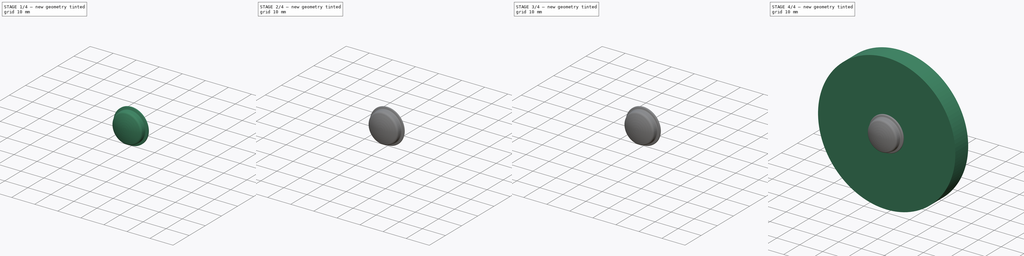
[diagram: build sequence overview — one tinted view per stage of 4, left to right]
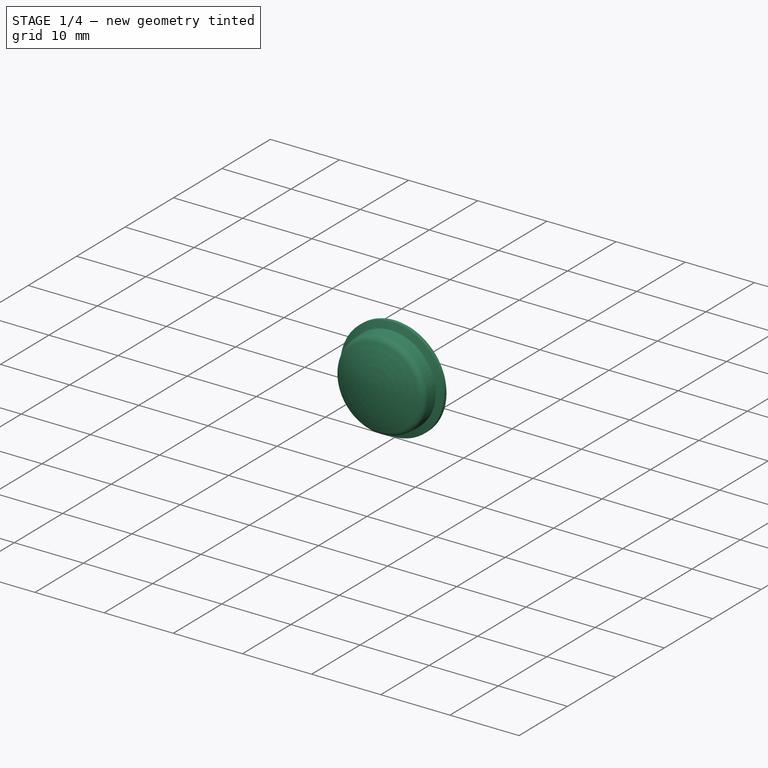
[diagram: stage 1 of 4 — iso view after this stage's code; geometry added in this stage tinted green]
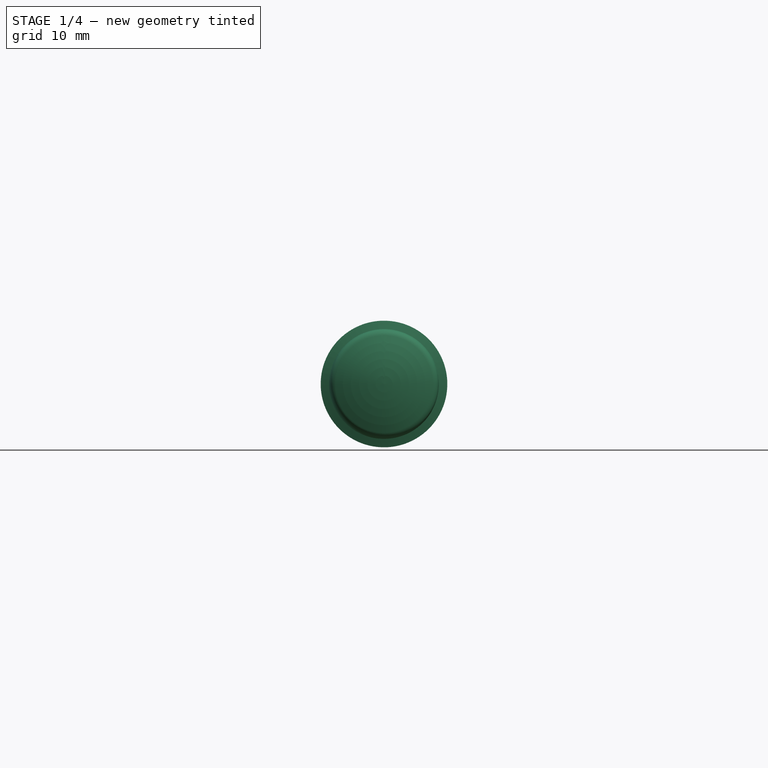
[diagram: stage 1 of 4 — front view after this stage's code; geometry added in this stage tinted green]
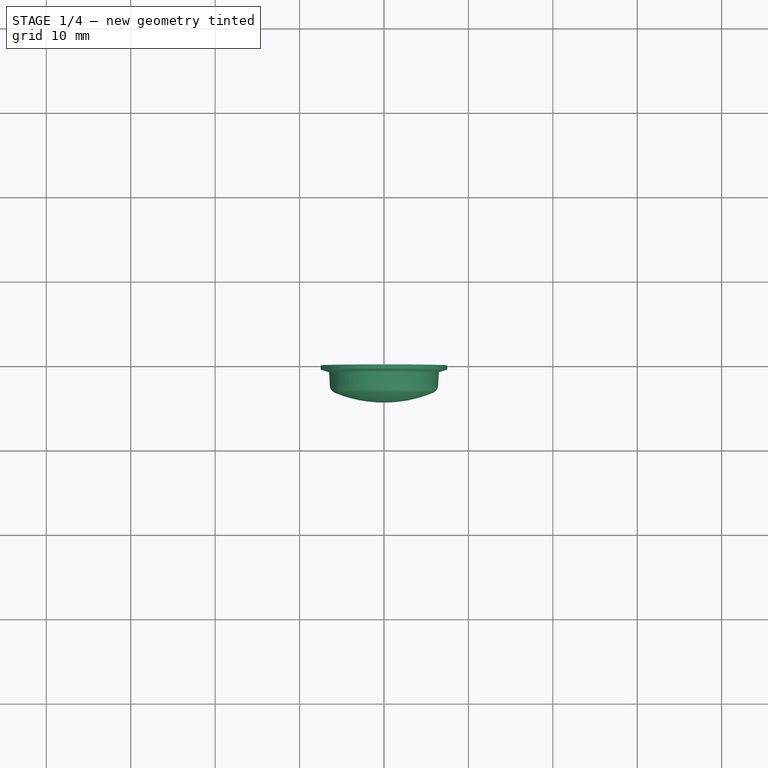
[diagram: stage 1 of 4 — top view after this stage's code; geometry added in this stage tinted green]
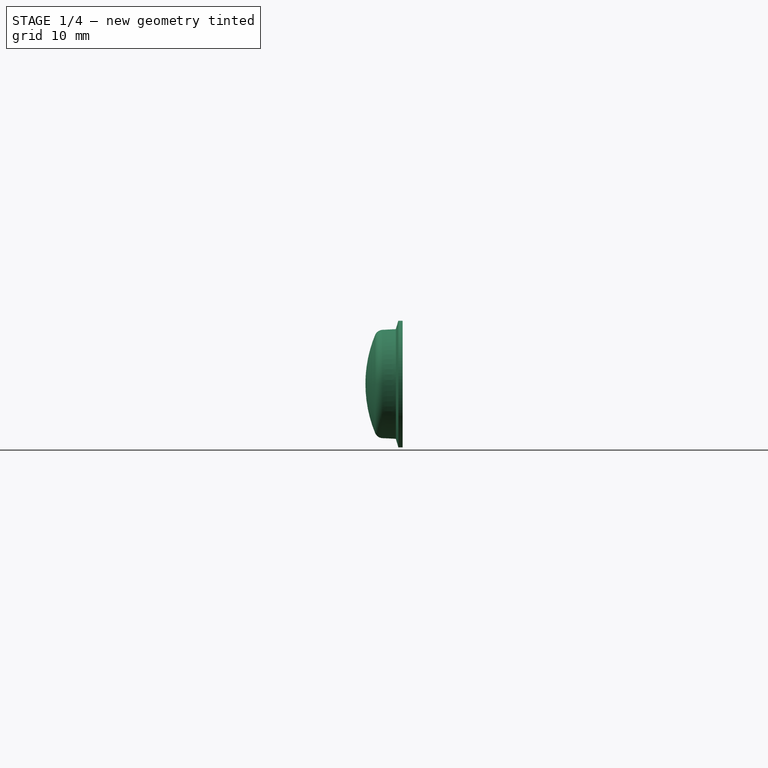
[diagram: stage 1 of 4 — right view after this stage's code; geometry added in this stage tinted green]
FCSTD DOCUMENT  (FreeCAD 2024.1006R14555 (Git shallow))
Label: proto-01
License: All rights reserved
LicenseURL: https://en.wikipedia.org/wiki/All_rights_reserved
objects: Sketcher::SketchObject×5, PartDesign::Body×4, PartDesign::Fillet×4, Part::Feature×3, App::Part×3, PartDesign::Revolution×2, PartDesign::Pocket×2, PartDesign::Pad×2, App::Link×1, App::VRMLObject×1
note: 47 computed .brp shape members not serialized (recipe doc carries the construction recipe); baked Part::Feature solids carry a one-line shape summary decoded from their .brp

FEATURE [PartDesign::Body] Body001  label="Roue60mm"
  AutoGroupSolids = false
  ClaimAllChildren = false
  ExportMode = 0
  FixShape = 1
  Group = -> [Sketch,Revolution,Sketch001,Pocket]
  InvalidShape = false
  Origin = -> Origin002
  Placement = pos=(0,-40,0) rot=(0,0,1;0rad)
  SingleSolid = true
  Tip = -> Pocket
  TreeRank = 27
  ValidateShape = false
  _ExportChildren = -> [Revolution,Pocket]
  _GroupVersion = 1
FEATURE [App::Part] Part001  label="EnsembleMoteurRoue-Gauche"
  ClaimAllChildren = false
  ExportMode = 1
  Group = -> [Solid,Body001]
  Origin = -> Origin003
  TreeRank = 30
  _ExportChildren = -> [Solid,Body001]
  _GroupVersion = 1
FEATURE [App::Link] Link  label="EnsembleMoteurRoue-Droit"
  AutoLinkLabel = true
  AutoPlacement = true
  LinkPlacement = pos=(0,0,0) rot=(0,0,1;3.14159rad)
  LinkedObject = -> Part001
  Placement = pos=(0,0,0) rot=(0,0,1;3.14159rad)
  SyncGroupVisibility = false
  TreeRank = 35
  _LinkVersion = 1
FEATURE [Part::Feature] Solid002  label="mg90s"
  FixShape = 1
  InvalidShape = false
  Placement = pos=(33,-6,27) rot=(1,0,0;1.5708rad)
  TreeRank = 41
  ValidateShape = false
  shape: bbox 32 x 33 x 12 mm, 448 faces (baked)
FEATURE [Part::Feature] Component___Canon_LP_E6__Canon_5D_  label="CanonLPE6-Canon"
  FixShape = 1
  InvalidShape = false
  Placement = pos=(29,-28,-6) rot=(0,1,0;1.5708rad)
  TreeRank = 40
  ValidateShape = false
  shape: bbox 21.37 x 57 x 38.51 mm, 74 faces, 0 solids (baked)
FEATURE [App::VRMLObject] MainBoard_PAMI_2025  label="MainBoard-PAMI-2025"
  TreeRank = 44
FEATURE [App::Part] Part  label="PCB-MainBoard-PAMI"
  ClaimAllChildren = false
  ExportMode = 1
  Group = -> [MainBoard_PAMI_2025]
  Origin = -> Origin001
  Placement = pos=(10,2.5e-15,40) rot=(0,0,1;1.5708rad)
  TreeRank = 16
  _ExportChildren = -> [MainBoard_PAMI_2025]
  _GroupVersion = 1
FEATURE [Sketcher::SketchObject] Sketch104
  ArcFitTolerance = 1e-06
  AttachmentSupport = -> [YZ_Plane033]
  ExternalBSplineMaxDegree = 5
  ExternalBSplineTolerance = 0.0001
  FixShape = 1
  FullyConstrained = true
  InternalTolerance = 1e-06
  InvalidShape = false
  MakeInternals = false
  MapMode = 5
  Placement = pos=(0,0,0) rot=(0.57735,0.57735,0.57735;2.0944rad)
  Support = -> [YZ_Plane033]
  TreeRank = 943
  ValidateShape = false
  sketch-geometry (6):
    g0: LineSegment StartX=0 StartY=0 StartZ=0 EndX=0 EndY=7.5 EndZ=0
    g1: ArcOfCircle CenterX=10.8587 CenterY=0 CenterZ=0 NormalX=0 NormalY=0 NormalZ=1 AngleXU=0 Radius=15.2587 StartAngle=2.70988 EndAngle=3.14159
    g2: LineSegment StartX=-3 StartY=6.3847 StartZ=0 EndX=-0.8 EndY=6.5 EndZ=0
    g3: LineSegment StartX=-0.8 StartY=6.5 StartZ=0 EndX=-0.5 EndY=7.5 EndZ=0
    g4: LineSegment StartX=-0.5 StartY=7.5 StartZ=0 EndX=0 EndY=7.5 EndZ=0
    g5: LineSegment StartX=-4.4 StartY=0 StartZ=0 EndX=0 EndY=0 EndZ=0
  constraints (18):
    c: Coincident(g0,g-1)
    c: PointOnObject(g0,g-2)
    c: DistanceY(g0,g0) = 7.5
    c: PointOnObject(g1,g-1)
    c: PointOnObject(g1,g-1)
    c: Coincident(g2,g1)
    c: Coincident(g3,g2)
    c: Coincident(g4,g3)
    c: Coincident(g4,g0)
    c: Horizontal(g4)
    c: DistanceX(g4,g4) = 0.5
    c: DistanceX(g2,g0) = 0.8
    c: DistanceY(g0,g2) = 6.5
    c: Angle(g-1,g2) = 0.0523599
    c: DistanceX(g1,g0) = 4.4
    c: DistanceX(g1,g0) = 3
    c: Coincident(g5,g1)
    c: Coincident(g5,g0)
FEATURE [PartDesign::Revolution] Revolution005
  AddSubType = 0
  Angle = 360
  Axis = (3e-16,1,-2e-16)
  Base = (0,0,0)
  ClaimChildren = false
  Fit = 0
  FitJoin = 0
  FixShape = 1
  InnerFit = 0
  InnerFitJoin = 0
  InvalidShape = false
  Linearize = true
  NewSolid = false
  Profile = -> Sketch104
  ReferenceAxis = -> Sketch104 [H_Axis]
  Refine = true
  Suppress = false
  TreeRank = 944
  ValidateShape = false
  _ProfileBasedVersion = 1
FEATURE [PartDesign::Fillet] Fillet055
  AddSubType = 0
  Base = -> Revolution005 [Edge1]
  BaseFeature = -> Revolution005
  FixShape = 1
  InvalidShape = false
  NewSolid = false
  Radius = 1
  Refine = true
  SupportTransform = false
  Suppress = false
  TreeRank = 945
  UseAllEdges = false
  ValidateShape = false
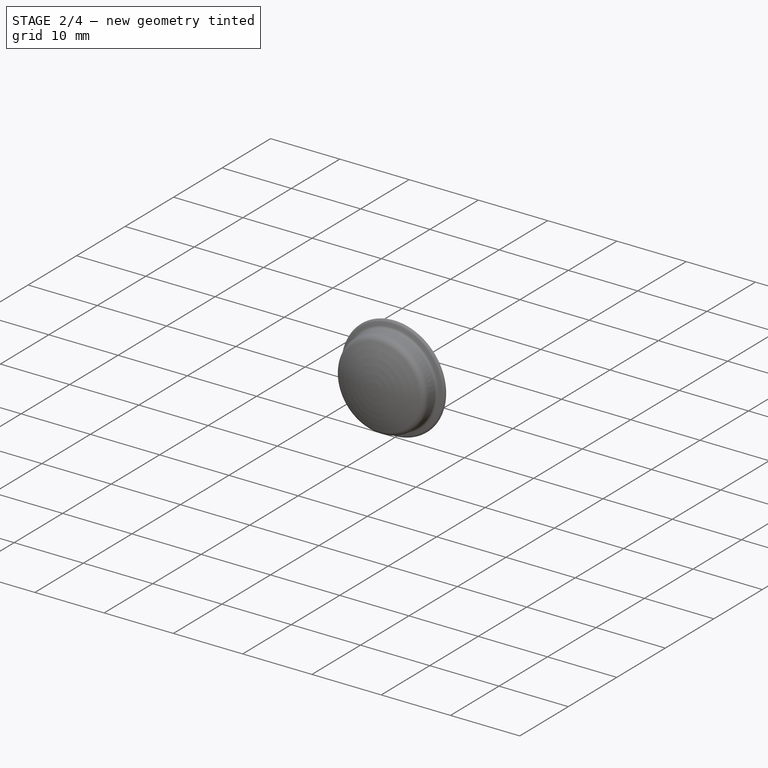
[diagram: stage 2 of 4 — iso view after this stage's code; geometry added in this stage tinted green]
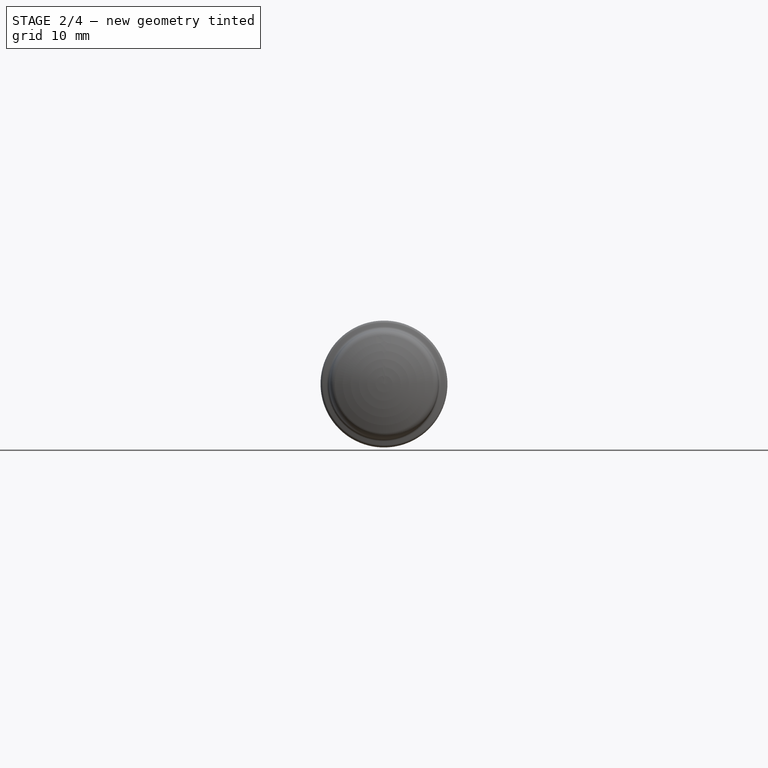
[diagram: stage 2 of 4 — front view after this stage's code; geometry added in this stage tinted green]
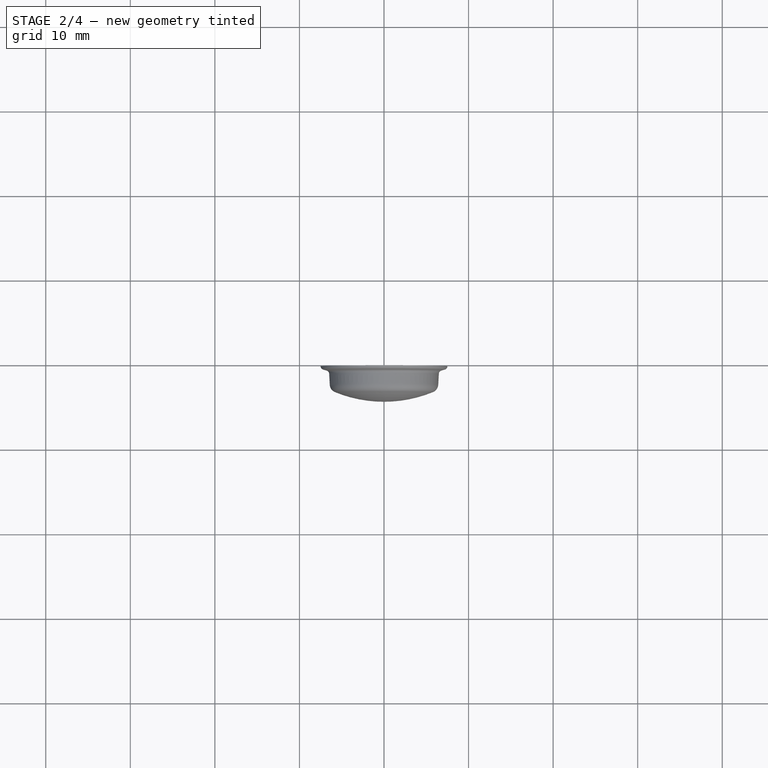
[diagram: stage 2 of 4 — top view after this stage's code; geometry added in this stage tinted green]
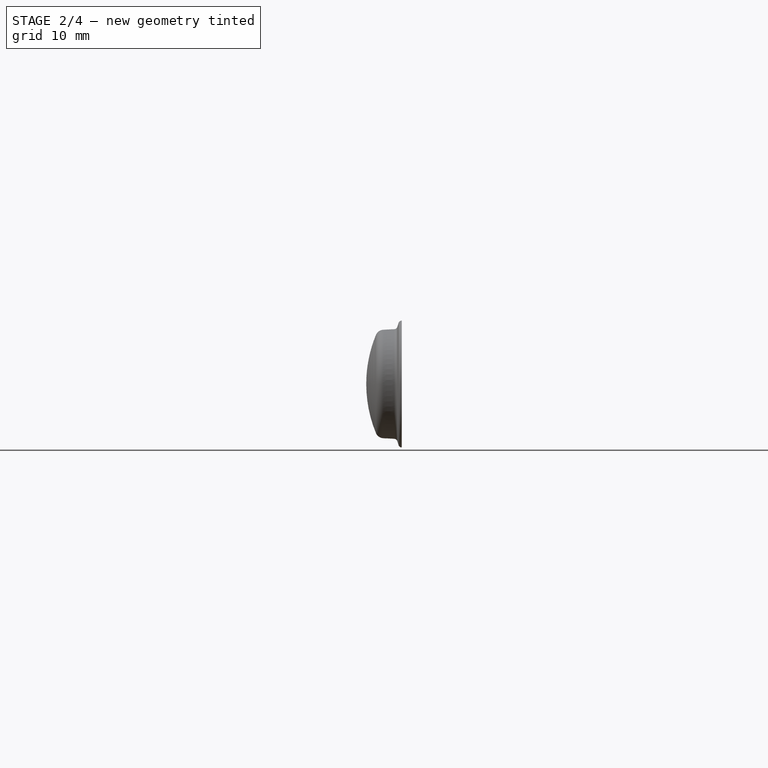
[diagram: stage 2 of 4 — right view after this stage's code; geometry added in this stage tinted green]
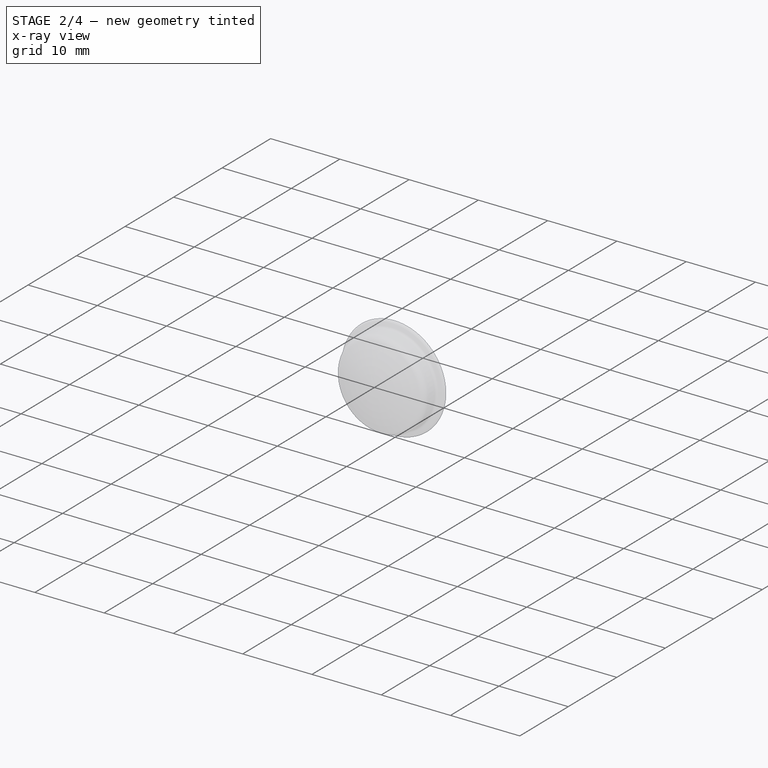
[diagram: stage 2 of 4 — x-ray composite at the iso view; earlier geometry ghosted, this stage's added geometry solid]
FEATURE [PartDesign::Fillet] Fillet056
  AddSubType = 0
  Base = -> Fillet055 [Edge7]
  BaseFeature = -> Fillet055
  FixShape = 1
  InvalidShape = false
  NewSolid = false
  Radius = 0.4
  Refine = true
  SupportTransform = false
  Suppress = false
  TreeRank = 946
  UseAllEdges = false
  ValidateShape = false
FEATURE [PartDesign::Fillet] Fillet057
  AddSubType = 0
  Base = -> Fillet056 [Edge9]
  BaseFeature = -> Fillet056
  FixShape = 1
  InvalidShape = false
  NewSolid = false
  Radius = 0.4
  Refine = true
  SupportTransform = false
  Suppress = false
  TreeRank = 947
  UseAllEdges = false
  ValidateShape = false
FEATURE [PartDesign::Pocket] Pocket054
  AddSubType = 1
  AlongSketchNormal = false
  AutoTaperInnerAngle = true
  BaseFeature = -> Fillet057
  CheckUpToFaceLimits = true
  ClaimChildren = false
  Direction = (-3e-16,-1,2e-16)
  Fit = 0
  FitJoin = 0
  FixShape = 1
  InnerFit = 0
  InnerFitJoin = 0
  InvalidShape = false
  Length = 0.2
  Length2 = 10
  Linearize = true
  NewSolid = false
  Profile = -> Fillet057 [Face6]
  Refine = true
  Suppress = false
  TaperInnerAngle = 0
  TaperInnerAngleRev = 0
  TreeRank = 963
  Type = 0
  ValidateShape = false
  _ProfileBasedVersion = 1
  _Version = 1
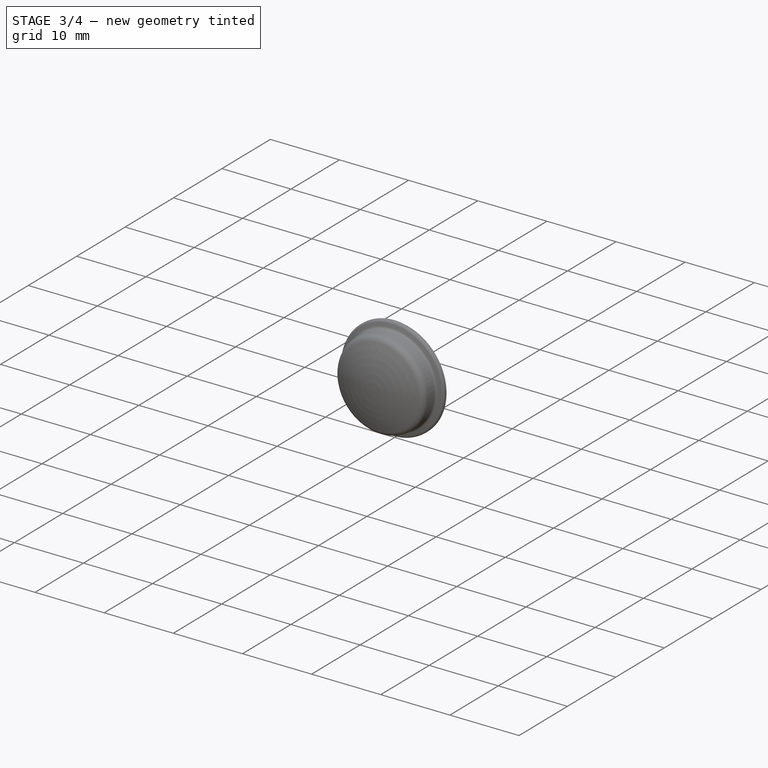
[diagram: stage 3 of 4 — iso view after this stage's code; geometry added in this stage tinted green]
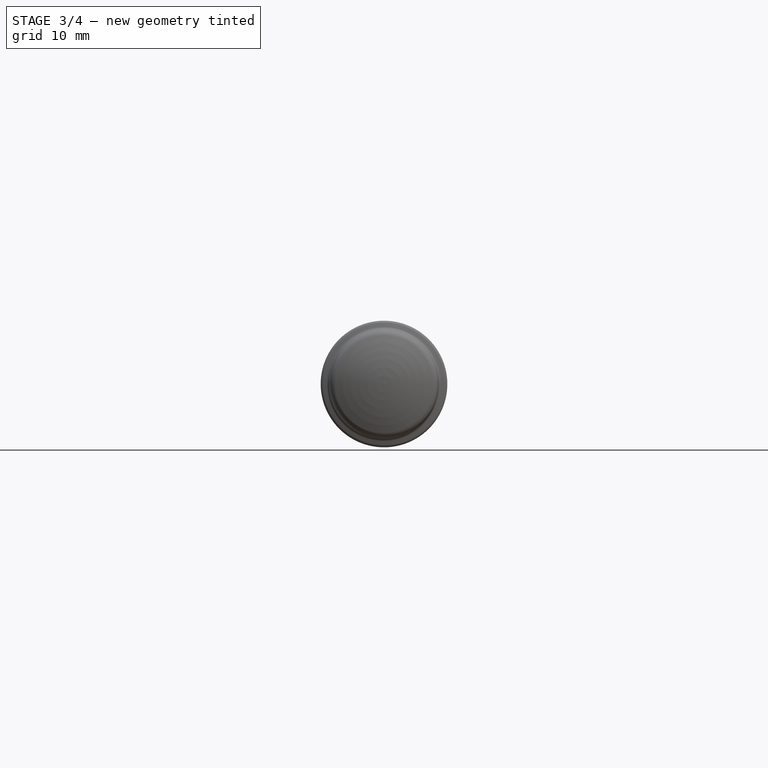
[diagram: stage 3 of 4 — front view after this stage's code; geometry added in this stage tinted green]
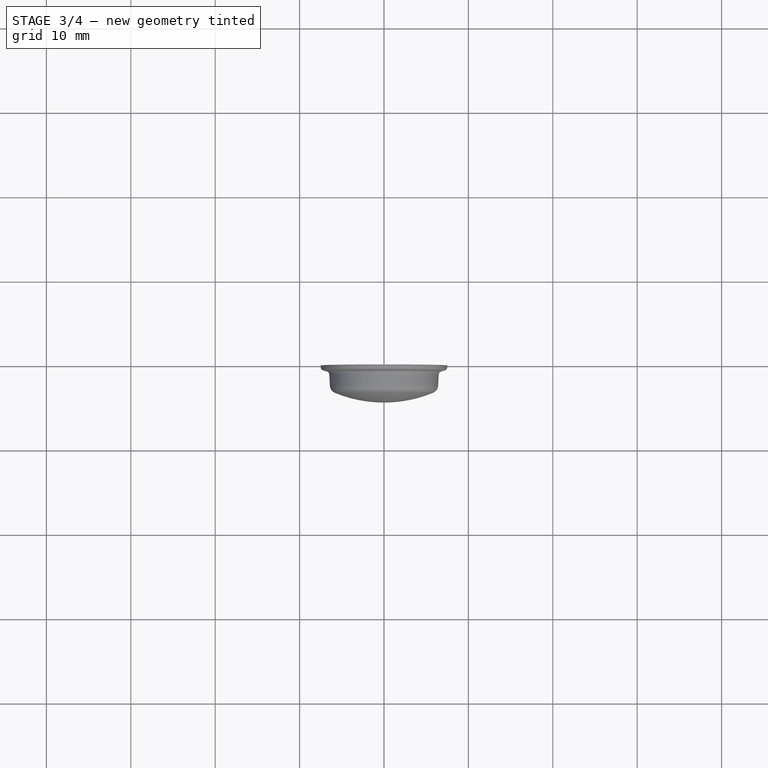
[diagram: stage 3 of 4 — top view after this stage's code; geometry added in this stage tinted green]
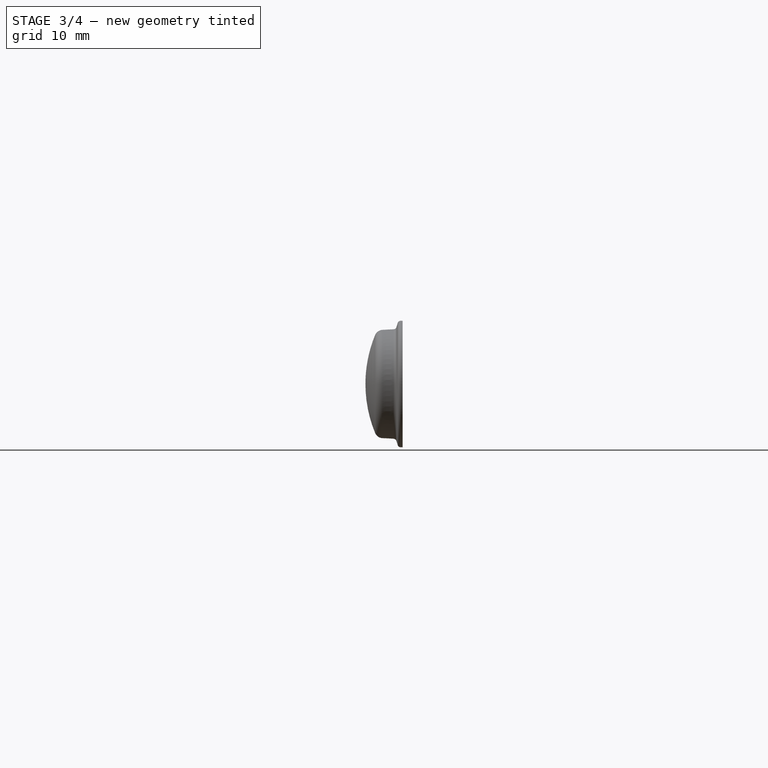
[diagram: stage 3 of 4 — right view after this stage's code; geometry added in this stage tinted green]
FEATURE [PartDesign::Body] Body027  label="Transparent"
  AutoGroupSolids = false
  ClaimAllChildren = false
  ExportMode = 0
  FixShape = 1
  Group = -> [Sketch104,Revolution005,Fillet055,Fillet056,Fillet057,Pocket054]
  InvalidShape = false
  Origin = -> Origin039
  SingleSolid = true
  Tip = -> Pocket054
  TreeRank = 990
  ValidateShape = false
  _ExportChildren = -> [Revolution005,Fillet055,Fillet056,Fillet057,Pocket054]
  _GroupVersion = 1
FEATURE [Sketcher::SketchObject] Sketch105
  ArcFitTolerance = 1e-06
  AttachmentSupport = -> [XZ_Plane035]
  ExternalBSplineMaxDegree = 5
  ExternalBSplineTolerance = 0.0001
  FixShape = 1
  FullyConstrained = true
  InternalTolerance = 1e-06
  InvalidShape = false
  MakeInternals = false
  MapMode = 5
  Placement = pos=(0,0,0) rot=(1,0,0;1.5708rad)
  Support = -> [XZ_Plane035]
  TreeRank = 974
  ValidateShape = false
  sketch-geometry (1):
    g0: Circle CenterX=0 CenterY=0 CenterZ=0 NormalX=0 NormalY=0 NormalZ=1 AngleXU=0 Radius=7.5
  constraints (2):
    c: Coincident(g0,g-1)
    c: Diameter(g0) = 15
FEATURE [PartDesign::Pad] Pad043
  AddSubType = 0
  AlongSketchNormal = false
  AutoTaperInnerAngle = true
  CheckUpToFaceLimits = true
  ClaimChildren = false
  Direction = (0,-1,-2e-16)
  Fit = 0
  FitJoin = 0
  FixShape = 1
  InnerFit = 0
  InnerFitJoin = 0
  InvalidShape = false
  Length = 0.2
  Length2 = 10
  Linearize = true
  NewSolid = false
  Profile = -> Sketch105
  ReferenceAxis = -> Sketch105 [N_Axis]
  Refine = true
  Suppress = false
  TaperInnerAngle = 0
  TaperInnerAngleRev = 0
  TreeRank = 975
  Type = 0
  ValidateShape = false
  _ProfileBasedVersion = 1
FEATURE [PartDesign::Body] Body028  label="SupportColor"
  AutoGroupSolids = false
  ClaimAllChildren = false
  ExportMode = 0
  FixShape = 1
  Group = -> [Sketch105,Pad043]
  InvalidShape = false
  Origin = -> Origin041
  SingleSolid = true
  Tip = -> Pad043
  TreeRank = 991
  ValidateShape = false
  _ExportChildren = -> [Pad043]
  _GroupVersion = 1
FEATURE [Sketcher::SketchObject] Sketch106
  ArcFitTolerance = 1e-06
  AttachmentSupport = -> [XZ_Plane036]
  ExternalBSplineMaxDegree = 5
  ExternalBSplineTolerance = 0.0001
  FixShape = 1
  FullyConstrained = true
  InternalTolerance = 1e-06
  InvalidShape = false
  MakeInternals = false
  MapMode = 5
  Placement = pos=(0,0,0) rot=(1,0,0;1.5708rad)
  Support = -> [XZ_Plane036]
  TreeRank = 987
  ValidateShape = false
  sketch-geometry (1):
    g0: Circle CenterX=0 CenterY=-1.5 CenterZ=0 NormalX=0 NormalY=0 NormalZ=1 AngleXU=0 Radius=5
  constraints (3):
    c: PointOnObject(g0,g-2)
    c: Diameter(g0) = 10
    c: DistanceY(g0,g-1) = 1.5
FEATURE [PartDesign::Pad] Pad044
  AddSubType = 0
  AlongSketchNormal = false
  AutoTaperInnerAngle = true
  CheckUpToFaceLimits = true
  ClaimChildren = false
  Direction = (0,-1,-2e-16)
  Fit = 0
  FitJoin = 0
  FixShape = 1
  InnerFit = 0
  InnerFitJoin = 0
  InvalidShape = false
  Length = 0.8
  Length2 = 10
  Linearize = true
  NewSolid = false
  Profile = -> Sketch106
  ReferenceAxis = -> Sketch106 [N_Axis]
  Refine = true
  Suppress = false
  TaperInnerAngle = 0
  TaperInnerAngleRev = 0
  TreeRank = 988
  Type = 0
  ValidateShape = false
  _ProfileBasedVersion = 1
FEATURE [PartDesign::Fillet] Fillet058
  AddSubType = 0
  Base = -> Pad044 [Edge3]
  BaseFeature = -> Pad044
  FixShape = 1
  InvalidShape = false
  NewSolid = false
  Radius = 0.7
  Refine = true
  SupportTransform = false
  Suppress = false
  TreeRank = 989
  UseAllEdges = false
  ValidateShape = false
FEATURE [PartDesign::Body] Body029  label="Pupille"
  AutoGroupSolids = false
  ClaimAllChildren = false
  ExportMode = 0
  FixShape = 1
  Group = -> [Sketch106,Pad044,Fillet058]
  InvalidShape = false
  Origin = -> Origin042
  Placement = pos=(0,-0.4,0.4) rot=(0,0,1;0rad)
  SingleSolid = true
  Tip = -> Fillet058
  TreeRank = 992
  ValidateShape = false
  _ExportChildren = -> [Pad044,Fillet058]
  _GroupVersion = 1
FEATURE [App::Part] Part011  label="Eye"
  ClaimAllChildren = false
  ExportMode = 1
  Group = -> [Body027,Body028,Body029]
  Origin = -> Origin040
  Placement = pos=(-49.9835,-23.9284,57.8424) rot=(-0.357536,0.040736,-0.93301;0.243029rad)
  TreeRank = 994
  _ExportChildren = -> [Body027,Body028,Body029]
  _GroupVersion = 1
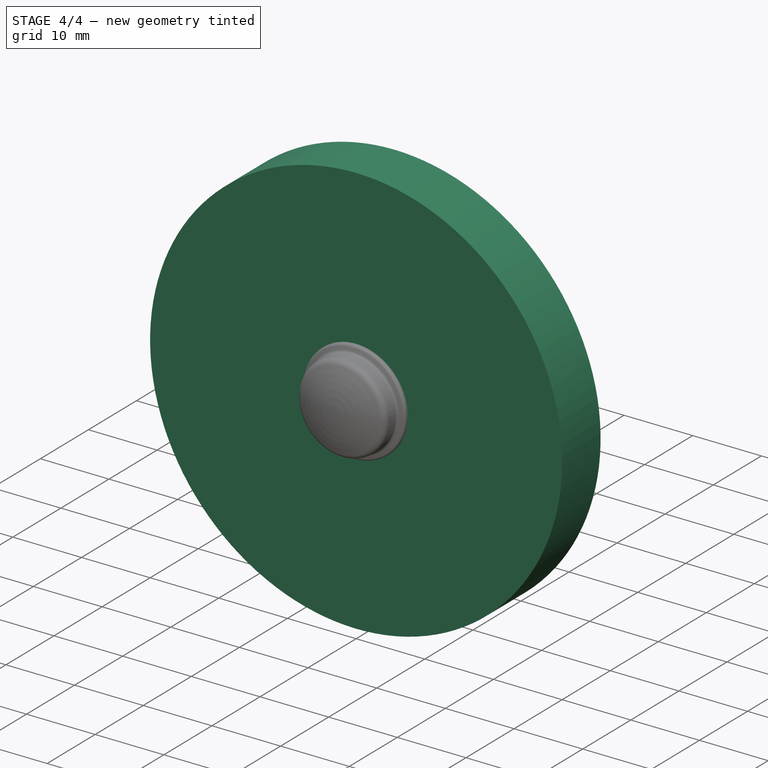
[diagram: stage 4 of 4 — iso view after this stage's code; geometry added in this stage tinted green]
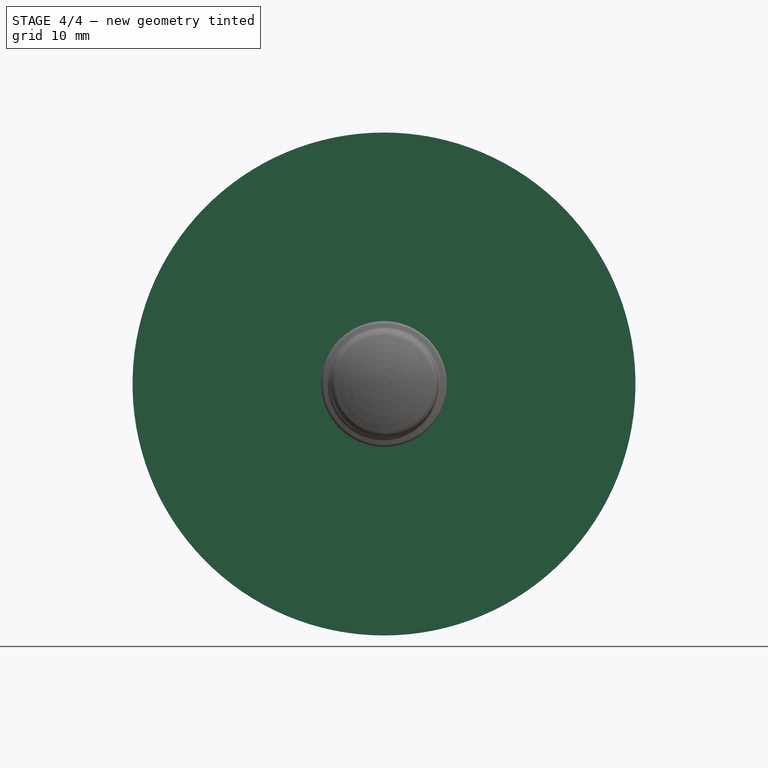
[diagram: stage 4 of 4 — front view after this stage's code; geometry added in this stage tinted green]
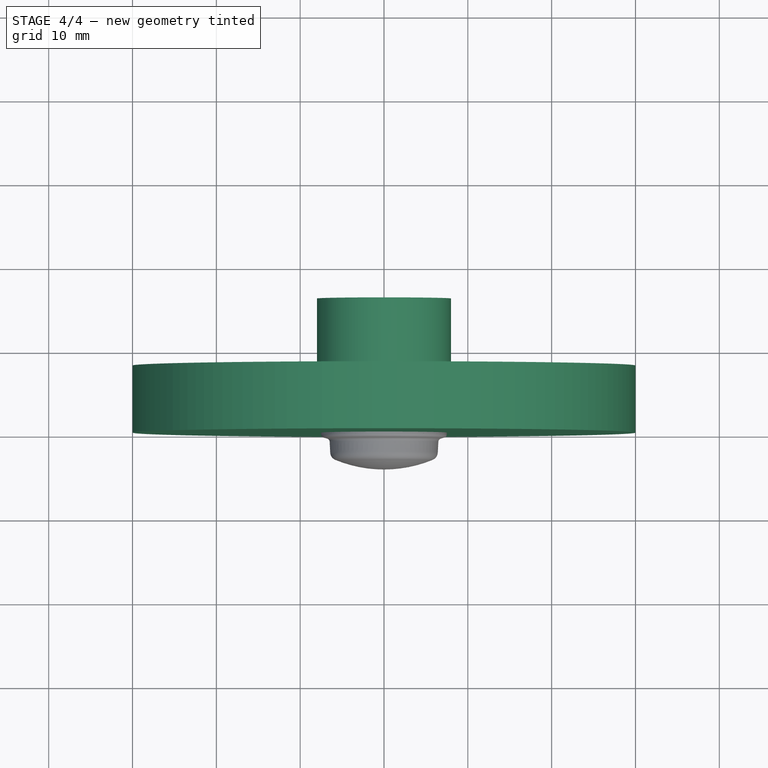
[diagram: stage 4 of 4 — top view after this stage's code; geometry added in this stage tinted green]
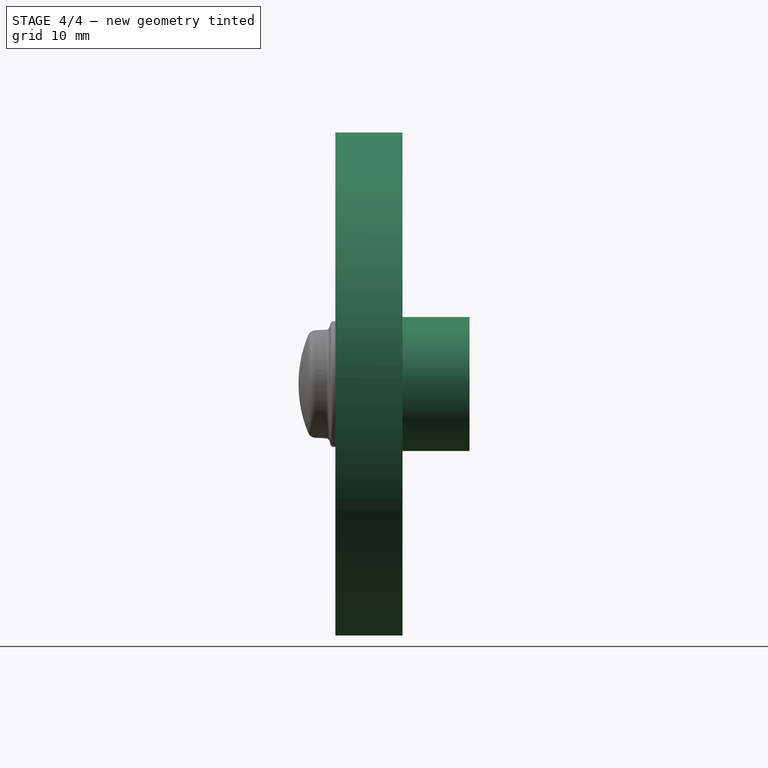
[diagram: stage 4 of 4 — right view after this stage's code; geometry added in this stage tinted green]
FEATURE [Part::Feature] Solid  label="17HS08-1004S"
  FixShape = 1
  InvalidShape = false
  Placement = pos=(0,-20,0) rot=(0,0,1;0rad)
  TreeRank = 2
  ValidateShape = false
  shape: bbox 42.32 x 40 x 62.15 mm, 316 faces (baked)
FEATURE [Sketcher::SketchObject] Sketch
  ArcFitTolerance = 1e-06
  AttachmentSupport = -> [YZ_Plane001]
  ExternalBSplineMaxDegree = 5
  ExternalBSplineTolerance = 0.0001
  FixShape = 1
  FullyConstrained = true
  InternalTolerance = 1e-06
  InvalidShape = false
  MakeInternals = false
  MapMode = 5
  Placement = pos=(0,0,0) rot=(0.57735,0.57735,0.57735;2.0944rad)
  Support = -> [YZ_Plane001]
  TreeRank = 31
  ValidateShape = false
  sketch-geometry (9):
    g0: LineSegment StartX=0 StartY=0 StartZ=0 EndX=8 EndY=0 EndZ=0
    g1: LineSegment [constr] StartX=8 StartY=0 StartZ=0 EndX=8 EndY=30 EndZ=0
    g2: LineSegment StartX=8 StartY=30 StartZ=0 EndX=0 EndY=30 EndZ=0
    g3: LineSegment StartX=0 StartY=30 StartZ=0 EndX=0 EndY=0 EndZ=0
    g4: LineSegment StartX=8 StartY=0 StartZ=0 EndX=16 EndY=0 EndZ=0
    g5: LineSegment StartX=16 StartY=0 StartZ=0 EndX=16 EndY=8 EndZ=0
    g6: LineSegment StartX=16 StartY=8 StartZ=0 EndX=8 EndY=8 EndZ=0
    g7: LineSegment [constr] StartX=8 StartY=8 StartZ=0 EndX=8 EndY=0 EndZ=0
    g8: LineSegment StartX=8 StartY=8 StartZ=0 EndX=8 EndY=30 EndZ=0
  constraints (24):
    c: Coincident(g0,g1)
    c: Coincident(g1,g2)
    c: Coincident(g2,g3)
    c: Coincident(g3,g0)
    c: Horizontal(g0)
    c: Horizontal(g2)
    c: Vertical(g1)
    c: Vertical(g3)
    c: Coincident(g0,g-1)
    c: Coincident(g4,g5)
    c: Coincident(g5,g6)
    c: Coincident(g6,g7)
    c: Coincident(g7,g4)
    c: Horizontal(g4)
    c: Horizontal(g6)
    c: Vertical(g5)
    c: Vertical(g7)
    c: Coincident(g4,g0)
    c: Coincident(g8,g6)
    c: Coincident(g8,g2)
    c: DistanceX(g0,g4) = 16
    c: DistanceY(g3,g3) = 30
    c: DistanceX(g2,g2) = 8
    c: DistanceY(g5,g5) = 8
FEATURE [PartDesign::Revolution] Revolution
  AddSubType = 0
  Angle = 360
  Axis = (3e-16,1,-2e-16)
  Base = (0,0,0)
  ClaimChildren = false
  Fit = 0
  FitJoin = 0
  FixShape = 1
  InnerFit = 0
  InnerFitJoin = 0
  InvalidShape = false
  Linearize = true
  NewSolid = false
  Profile = -> Sketch
  ReferenceAxis = -> Sketch [H_Axis]
  Refine = true
  Suppress = false
  TreeRank = 32
  ValidateShape = true
  _ProfileBasedVersion = 1
FEATURE [Sketcher::SketchObject] Sketch001
  ArcFitTolerance = 1e-06
  AttachmentSupport = -> [XZ_Plane001]
  ExternalBSplineMaxDegree = 5
  ExternalBSplineTolerance = 0.0001
  FixShape = 1
  FullyConstrained = true
  InternalTolerance = 1e-06
  InvalidShape = false
  MakeInternals = false
  MapMode = 5
  Placement = pos=(0,0,0) rot=(1,0,0;1.5708rad)
  Support = -> [XZ_Plane001]
  TreeRank = 33
  ValidateShape = false
  sketch-geometry (1):
    g0: Circle CenterX=0 CenterY=0 CenterZ=0 NormalX=0 NormalY=0 NormalZ=1 AngleXU=0 Radius=2.5
  constraints (2):
    c: Coincident(g0,g-1)
    c: Diameter(g0) = 5
FEATURE [PartDesign::Pocket] Pocket
  AddSubType = 1
  AlongSketchNormal = false
  AutoTaperInnerAngle = true
  BaseFeature = -> Revolution
  CheckUpToFaceLimits = true
  ClaimChildren = false
  Direction = (0,1,-2e-16)
  Fit = 0
  FitJoin = 0
  FixShape = 1
  InnerFit = 0
  InnerFitJoin = 0
  InvalidShape = false
  Length = 5
  Length2 = 10
  Linearize = true
  NewSolid = false
  Profile = -> Sketch001
  ReferenceAxis = -> Sketch001 [N_Axis]
  Refine = true
  Suppress = false
  TaperInnerAngle = 0
  TaperInnerAngleRev = 0
  TreeRank = 34
  Type = 1
  ValidateShape = true
  _ProfileBasedVersion = 1
  _Version = 1
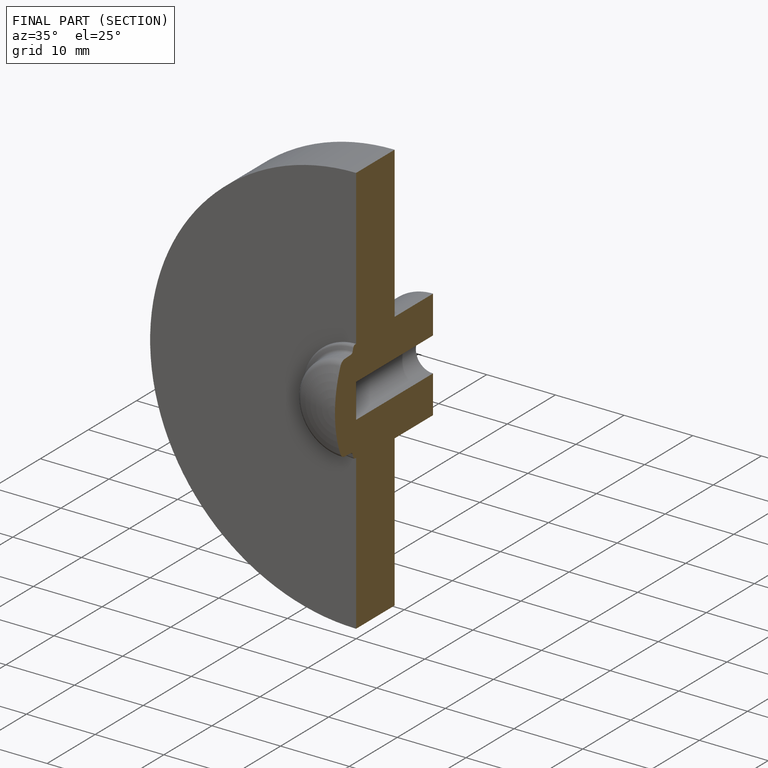
[diagram: finished part — half-section view (interior)]
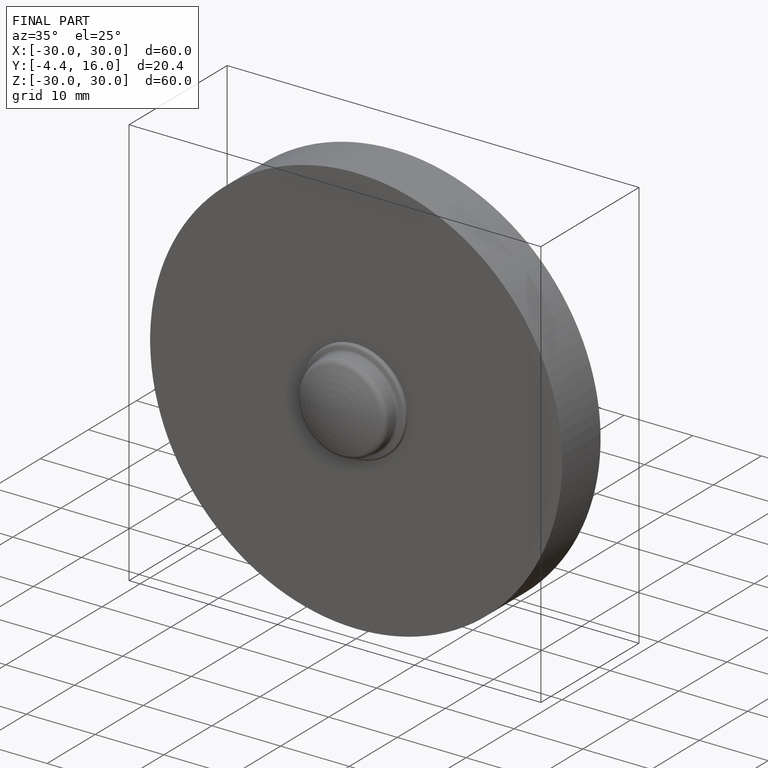
[diagram: finished part — iso view with bounding-box wireframe]
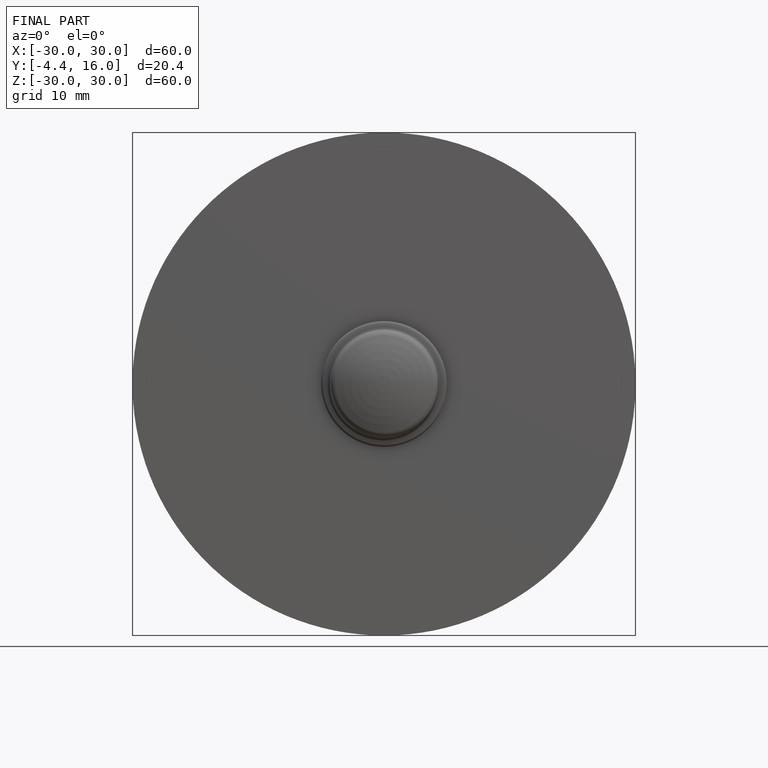
[diagram: finished part — front view with bounding-box wireframe]
